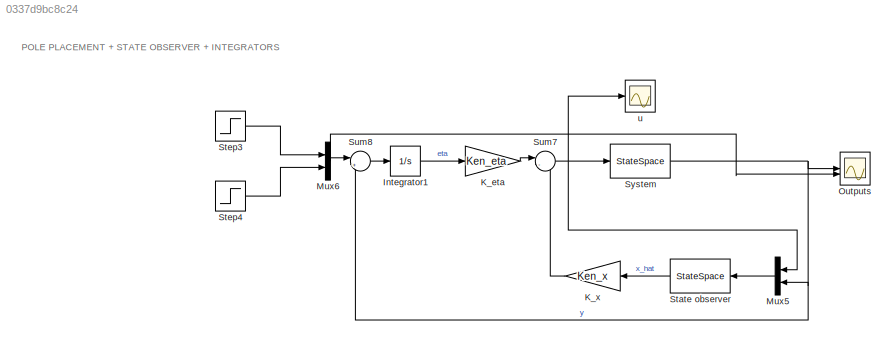
MODEL slx_0337d9bc8c24
KIND model
CONFIG AbsTol = auto
CONFIG EnableMultiTasking = on
CONFIG FixedStep = auto
CONFIG MaxStep = auto
CONFIG MinStep = auto
CONFIG RelTol = 1e-3
CONFIG SampleTimeConstraint = Unconstrained
CONFIG SolverName = ode15s
CONFIG StartTime = 0.0
CONFIG StopTime = 50
BLOCK [Integrator] Integrator1
BLOCK [Gain] K_eta
  Gain = Ken_eta
  Multiplication = Matrix(K*u) (u vector)
BLOCK [Gain] K_x
  Gain = Ken_x
  Multiplication = Matrix(K*u) (u vector)
BLOCK [Mux] Mux5
  DisplayOption = bar
  Inputs = 2
BLOCK [Mux] Mux6
  DisplayOption = bar
  Inputs = 2
BLOCK [Scope] Outputs
  Floating = off
  NumInputPorts = 2
  ScopeSpecificationString = Simulink.scopes.TimeScopeBlockCfg('CurrentConfiguration', extmgr.ConfigurationSet(extmgr.Configuration('Core','General UI',true),extmgr.Configuration('Core','Source UI',true),extmgr.Configuration('Sources','WiredSimulink',true,'DataLoggingVariableName','ScopeData3'),extmgr.Configuration('Visuals','Time Domain',true,'SerializedDisplays',{struct('MinYLimReal','-0.47176','MaxYLimReal','0.2283','YLabe...<+2098ch>
BLOCK [StateSpace] State observer
  A = A_ob
  B = B_ob
  C = C_ob
  D = D_ob
  InitialCondition = 0
BLOCK [Step] Step3
  After = 1.04
  SampleTime = 0
  Time = 100
BLOCK [Step] Step4
  After = -0.52
  SampleTime = 0
  Time = 150
BLOCK [Sum] Sum7
  Inputs = |--
BLOCK [Sum] Sum8
  Inputs = |+-
BLOCK [StateSpace] System
  A = A
  B = B
  C = C
  D = D
  InitialCondition = x0
BLOCK [Scope] u
  Floating = off
  NumInputPorts = 1
  ScopeSpecificationString = Simulink.scopes.TimeScopeBlockCfg('CurrentConfiguration', extmgr.ConfigurationSet(extmgr.Configuration('Core','General UI',true),extmgr.Configuration('Core','Source UI',true),extmgr.Configuration('Sources','WiredSimulink',true,'DataLoggingVariableName','ScopeData4','DataLoggingSaveFormat','StructureWithTime','DataLoggingLimitDataPoints',true,'DataLoggingDecimation','1','DataLoggingDecimateData',tr...<+2681ch>
ANNOTATION (root): POLE PLACEMENT + STATE OBSERVER + INTEGRATORS
LINE Integrator1:1 -> K_eta:1
LINE K_eta:1 -> Sum7:1
LINE K_x:1 -> Sum7:2
LINE Mux5:1 -> State observer:1
NET Mux6:1 -> Outputs:2, Sum8:1
LINE State observer:1 -> K_x:1
LINE Step3:1 -> Mux6:1
LINE Step4:1 -> Mux6:2
NET Sum7:1 -> Mux5:1, System:1, u:1
LINE Sum8:1 -> Integrator1:1
NET System:1 -> Mux5:2, Outputs:1, Sum8:2
note: NET lines group one-source signal fan-out (src -> all destinations, sorted); 1:1 wires keep LINE
